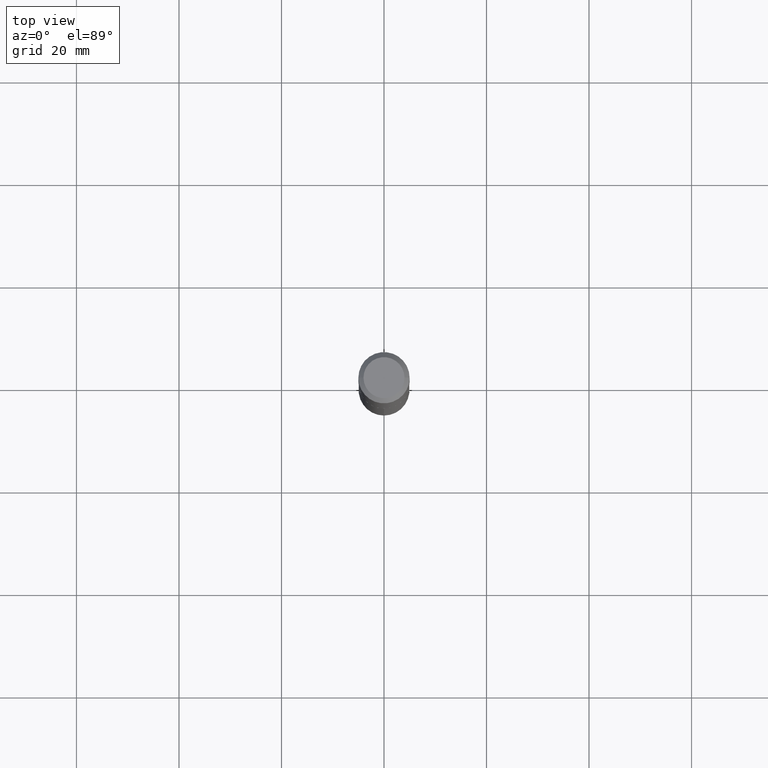
[diagram: clean part render]
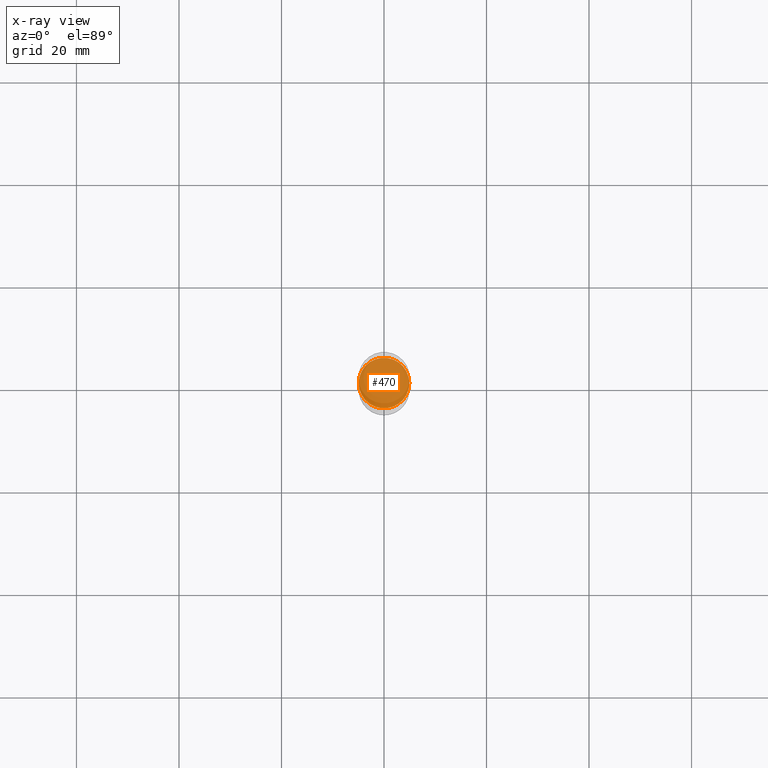
[diagram: x-ray — body ghosted, one internal face saturated and labeled with its STEP entity id]
A machine part, top view, then the same camera in x-ray: the body is ghosted and one INTERNAL B-rep face — a face not visible from any outside direction — is saturated and labeled: STEP entity #470.
In plain terms, the highlighted planar face has unit normal (-0, 0, 1).
Its self-contained STEP definition (entity closure, byte-faithful):
#10 = PLANE ( 'NONE',  #449 ) ;
#21 = ORIENTED_EDGE ( 'NONE', *, *, #282, .F. ) ;
#24 = VERTEX_POINT ( 'NONE', #358 ) ;
#48 = ORIENTED_EDGE ( 'NONE', *, *, #483, .F. ) ;
#57 = AXIS2_PLACEMENT_3D ( 'NONE', #349, #161, #202 ) ;
#129 = DIRECTION ( 'NONE',  ( -2.438088387897960049E-29, 3.491481338843145188E-15, 1.000000000000000000 ) ) ;
#161 = DIRECTION ( 'NONE',  ( -2.445468806185136597E-29, 3.491481338843145583E-15, 1.000000000000000000 ) ) ;
#168 = FACE_OUTER_BOUND ( 'NONE', #396, .T. ) ;
#199 = DIRECTION ( 'NONE',  ( 1.000000000000000000, -6.982962677686265922E-15, 4.876176775795935793E-29 ) ) ;
#202 = DIRECTION ( 'NONE',  ( 1.000000000000000000, -6.982962677686267499E-15, 0.000000000000000000 ) ) ;
#206 = CIRCLE ( 'NONE', #422, 0.1943999999999999895 ) ;
#245 = DIRECTION ( 'NONE',  ( 1.000000000000000000, -6.982962677686267499E-15, 0.000000000000000000 ) ) ;
#253 = CARTESIAN_POINT ( 'NONE',  ( -0.1943999999999999895, -7.138412494490485303E-15, -2.440899999999999181 ) ) ;
#282 = EDGE_CURVE ( 'NONE', #466, #24, #356, .T. ) ;
#329 = CARTESIAN_POINT ( 'NONE',  ( 5.969144809017297917E-29, -8.522356799982231388E-15, -2.440899999999999181 ) ) ;
#349 = CARTESIAN_POINT ( 'NONE',  ( 5.969144809017297917E-29, -8.522356799982231388E-15, -2.440899999999999181 ) ) ;
#356 = CIRCLE ( 'NONE', #57, 0.1943999999999999895 ) ;
#358 = CARTESIAN_POINT ( 'NONE',  ( 0.1943999999999999895, -9.879844744524441472E-15, -2.440899999999999181 ) ) ;
#396 = EDGE_LOOP ( 'NONE', ( #48, #21 ) ) ;
#422 = AXIS2_PLACEMENT_3D ( 'NONE', #329, #450, #245 ) ;
#449 = AXIS2_PLACEMENT_3D ( 'NONE', #469, #129, #199 ) ;
#450 = DIRECTION ( 'NONE',  ( -2.445468806185136597E-29, 3.491481338843145583E-15, 1.000000000000000000 ) ) ;
#466 = VERTEX_POINT ( 'NONE', #253 ) ;
#469 = CARTESIAN_POINT ( 'NONE',  ( 5.969144809017297917E-29, -8.522356799982231388E-15, -2.440899999999999181 ) ) ;
#470 = ADVANCED_FACE ( 'NONE', ( #168 ), #10, .F. ) ;
#483 = EDGE_CURVE ( 'NONE', #24, #466, #206, .T. ) ;